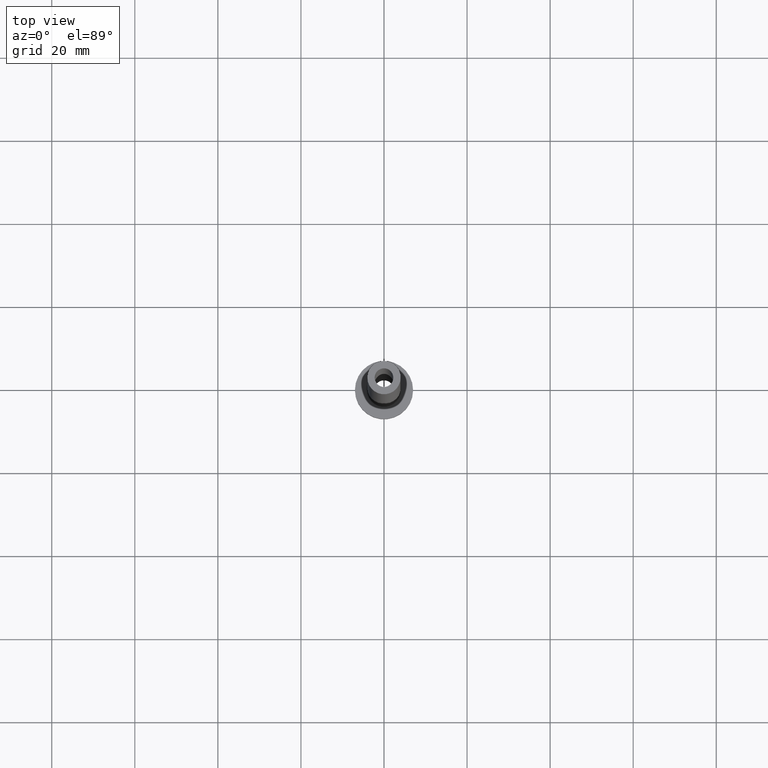
[diagram: clean part render]
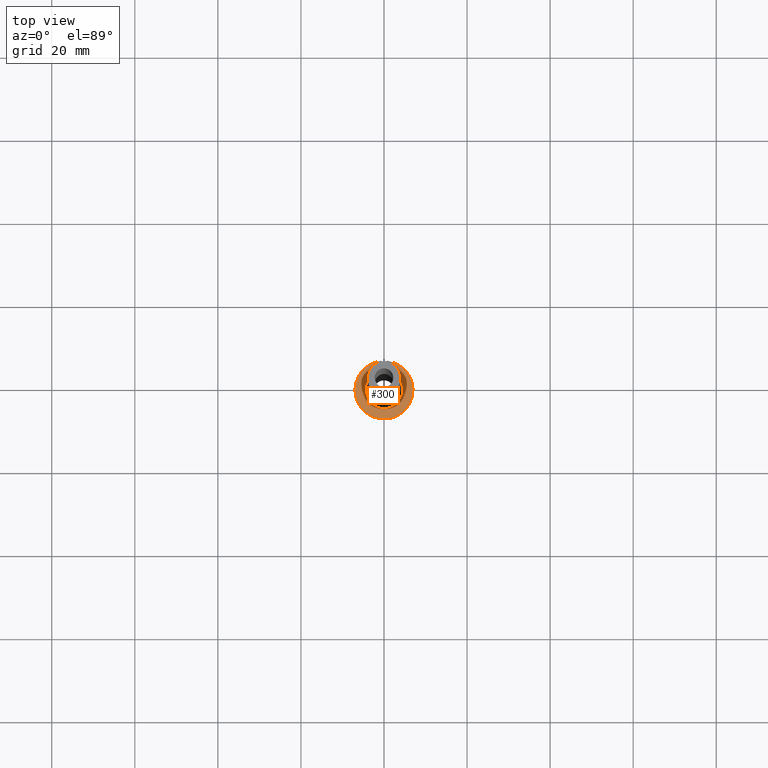
[diagram: same view with one face highlighted and labeled with its STEP entity id]
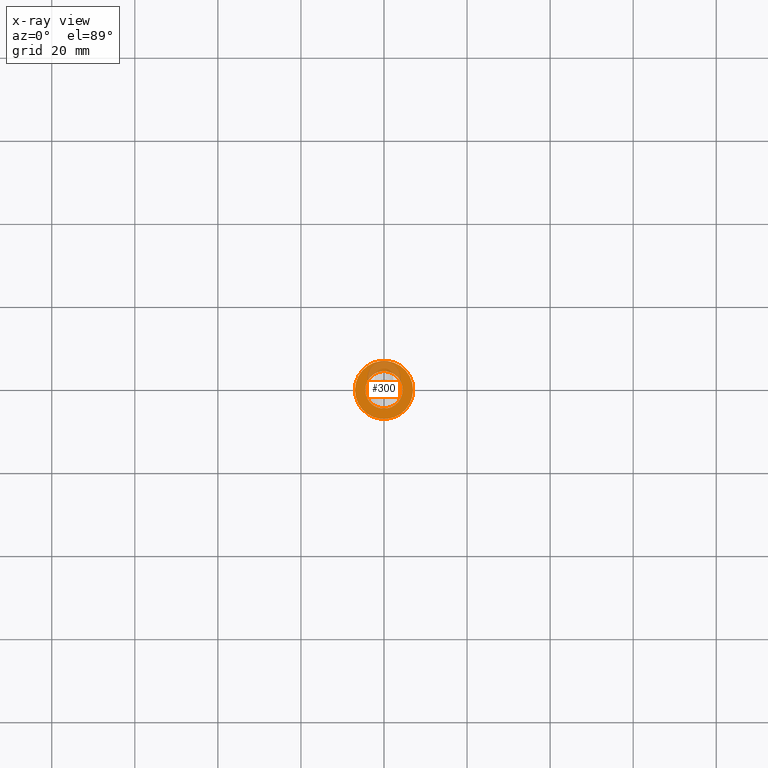
[diagram: x-ray of the same camera — body ghosted, the highlighted face saturated]
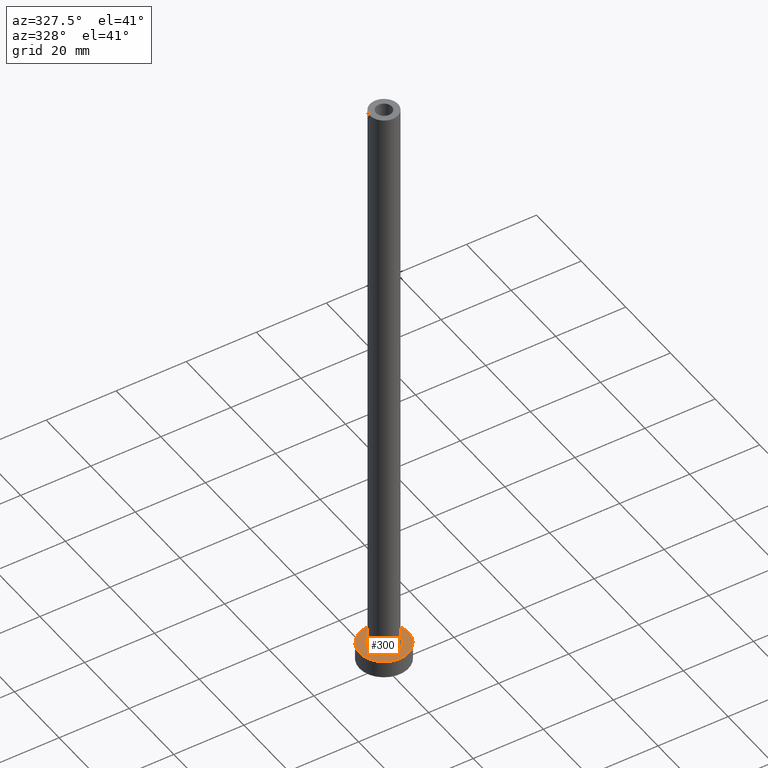
[diagram: same view with one face highlighted and labeled with its STEP entity id]
A machine part, top view. The second image highlights one B-rep face of the part: STEP entity #300.
The next image is the same camera in x-ray: the body ghosted, the highlighted face saturated — about 20% of this face is hidden behind the body in this view.
A second angle (auxiliary view) of the same face is appended — the face is thin or edge-on in the first view.
In plain terms, the highlighted planar face has unit normal (0, 0, 1).
Its self-contained STEP definition (entity closure, byte-faithful):
#5 = DIRECTION ( 'NONE',  ( 1.000000000000000000, 0.000000000000000000, 0.000000000000000000 ) ) ;
#18 = ORIENTED_EDGE ( 'NONE', *, *, #229, .T. ) ;
#19 = DIRECTION ( 'NONE',  ( 0.000000000000000000, 0.000000000000000000, 1.000000000000000000 ) ) ;
#23 = CARTESIAN_POINT ( 'NONE',  ( 7.000000000000000000, 8.572527594031473190E-16, 5.000000000000000000 ) ) ;
#24 = EDGE_LOOP ( 'NONE', ( #161, #232 ) ) ;
#40 = DIRECTION ( 'NONE',  ( 0.000000000000000000, 0.000000000000000000, 1.000000000000000000 ) ) ;
#83 = DIRECTION ( 'NONE',  ( 1.000000000000000000, 0.000000000000000000, 0.000000000000000000 ) ) ;
#86 = AXIS2_PLACEMENT_3D ( 'NONE', #432, #399, #83 ) ;
#91 = CARTESIAN_POINT ( 'NONE',  ( -7.000000000000000000, 0.000000000000000000, 5.000000000000000000 ) ) ;
#98 = ORIENTED_EDGE ( 'NONE', *, *, #204, .T. ) ;
#105 = DIRECTION ( 'NONE',  ( 0.000000000000000000, 0.000000000000000000, 1.000000000000000000 ) ) ;
#119 = CARTESIAN_POINT ( 'NONE',  ( 0.000000000000000000, 0.000000000000000000, 5.000000000000000000 ) ) ;
#128 = AXIS2_PLACEMENT_3D ( 'NONE', #332, #227, #5 ) ;
#137 = CIRCLE ( 'NONE', #199, 7.000000000000000000 ) ;
#144 = FACE_BOUND ( 'NONE', #435, .T. ) ;
#156 = CIRCLE ( 'NONE', #162, 7.000000000000000000 ) ;
#161 = ORIENTED_EDGE ( 'NONE', *, *, #233, .T. ) ;
#162 = AXIS2_PLACEMENT_3D ( 'NONE', #290, #105, #253 ) ;
#182 = EDGE_CURVE ( 'NONE', #353, #347, #156, .T. ) ;
#189 = DIRECTION ( 'NONE',  ( 1.000000000000000000, 0.000000000000000000, 0.000000000000000000 ) ) ;
#199 = AXIS2_PLACEMENT_3D ( 'NONE', #119, #40, #189 ) ;
#204 = EDGE_CURVE ( 'NONE', #413, #234, #247, .T. ) ;
#227 = DIRECTION ( 'NONE',  ( -0.000000000000000000, -0.000000000000000000, -1.000000000000000000 ) ) ;
#229 = EDGE_CURVE ( 'NONE', #234, #413, #453, .T. ) ;
#230 = AXIS2_PLACEMENT_3D ( 'NONE', #381, #19, #445 ) ;
#232 = ORIENTED_EDGE ( 'NONE', *, *, #182, .T. ) ;
#233 = EDGE_CURVE ( 'NONE', #347, #353, #137, .T. ) ;
#234 = VERTEX_POINT ( 'NONE', #285 ) ;
#247 = CIRCLE ( 'NONE', #128, 4.500000000000000888 ) ;
#253 = DIRECTION ( 'NONE',  ( 1.000000000000000000, 0.000000000000000000, 0.000000000000000000 ) ) ;
#256 = CARTESIAN_POINT ( 'NONE',  ( -4.500000000000000888, 5.510910596163088569E-16, 5.000000000000002665 ) ) ;
#285 = CARTESIAN_POINT ( 'NONE',  ( 4.500000000000000888, 0.000000000000000000, 5.000000000000002665 ) ) ;
#290 = CARTESIAN_POINT ( 'NONE',  ( 0.000000000000000000, 0.000000000000000000, 5.000000000000000000 ) ) ;
#300 = ADVANCED_FACE ( 'NONE', ( #144, #345 ), #383, .T. ) ;
#332 = CARTESIAN_POINT ( 'NONE',  ( 0.000000000000000000, 0.000000000000000000, 5.000000000000000000 ) ) ;
#345 = FACE_OUTER_BOUND ( 'NONE', #24, .T. ) ;
#347 = VERTEX_POINT ( 'NONE', #91 ) ;
#353 = VERTEX_POINT ( 'NONE', #23 ) ;
#381 = CARTESIAN_POINT ( 'NONE',  ( 0.000000000000000000, 0.000000000000000000, 5.000000000000000000 ) ) ;
#383 = PLANE ( 'NONE',  #230 ) ;
#399 = DIRECTION ( 'NONE',  ( -0.000000000000000000, -0.000000000000000000, -1.000000000000000000 ) ) ;
#413 = VERTEX_POINT ( 'NONE', #256 ) ;
#432 = CARTESIAN_POINT ( 'NONE',  ( 0.000000000000000000, 0.000000000000000000, 5.000000000000000000 ) ) ;
#435 = EDGE_LOOP ( 'NONE', ( #18, #98 ) ) ;
#445 = DIRECTION ( 'NONE',  ( 1.000000000000000000, 0.000000000000000000, -0.000000000000000000 ) ) ;
#453 = CIRCLE ( 'NONE', #86, 4.500000000000000888 ) ;